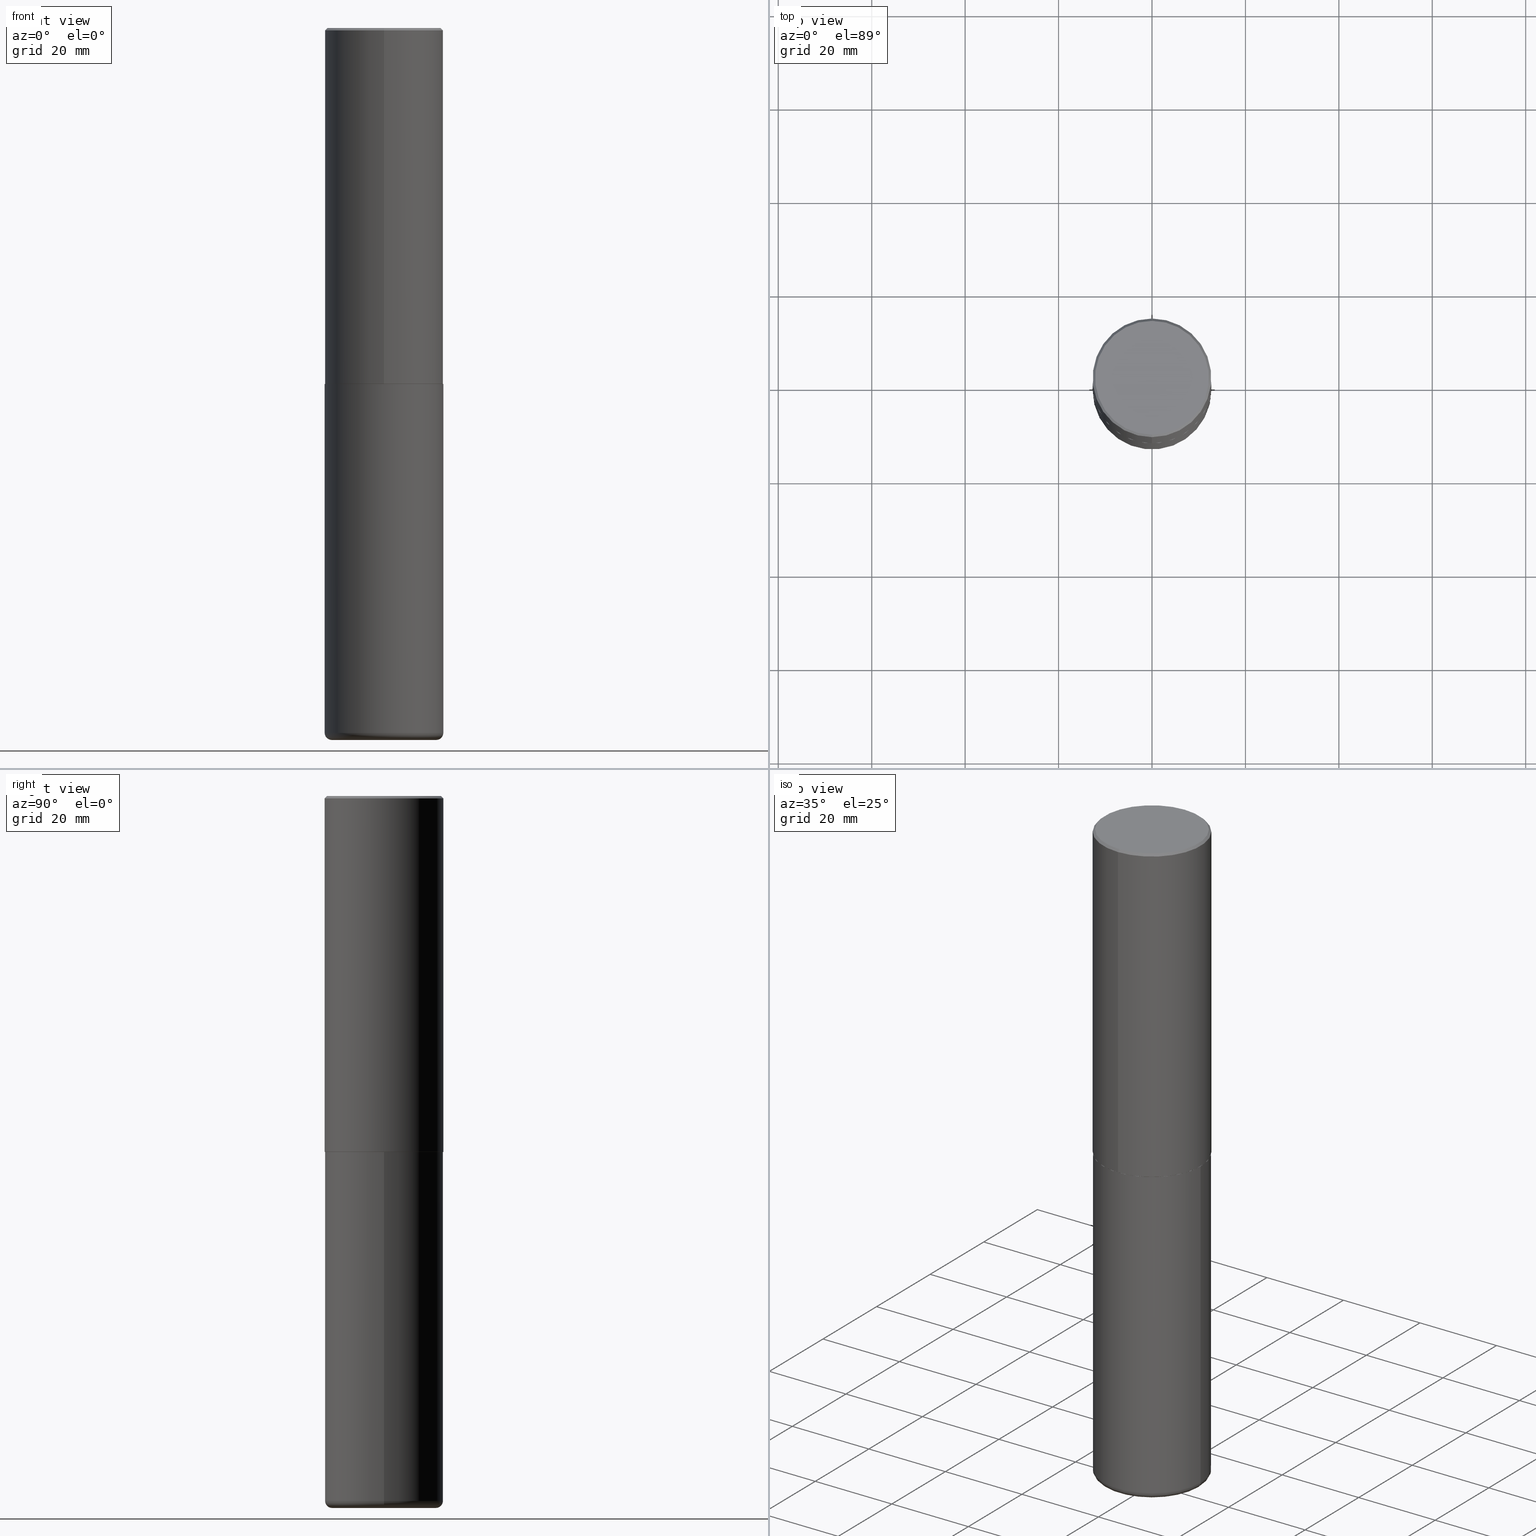
[diagram: canonical four-view strip — front | top / right | iso, engineering-drawing reading convention]
A machine part, canonical four-view strip (front | top / right | iso — engineering-drawing reading convention). The complete STEP part file that produces these views, byte-faithful:
ISO-10303-21;
HEADER;
FILE_DESCRIPTION (( 'STEP AP203' ),
    '1' );
FILE_NAME ('37719.STEP',
    '2024-03-02T09:13:31',
    ( '' ),
    ( '' ),
    'SwSTEP 2.0',
    'SolidWorks 2023',
    '' );
FILE_SCHEMA (( 'CONFIG_CONTROL_DESIGN' ));
ENDSEC;

DATA;
#1 = DATE_TIME_ROLE ( 'classification_date' ) ;
#2 = APPROVAL_STATUS ( 'not_yet_approved' ) ;
#3 = ORIENTED_EDGE ( 'NONE', *, *, #120, .F. ) ;
#4 = CARTESIAN_POINT ( 'NONE',  ( 7.334694101099137475E-29, -1.047689615258587837E-14, -3.000000000000000444 ) ) ;
#5 = EDGE_CURVE ( 'NONE', #378, #255, #9, .T. ) ;
#6 = APPLICATION_CONTEXT ( 'configuration controlled 3d designs of mechanical parts and assemblies' ) ;
#7 = EDGE_LOOP ( 'NONE', ( #361, #119, #196, #91 ) ) ;
#8 = LOCAL_TIME ( 4, 13, 31.00000000000000000, #287 ) ;
#9 = LINE ( 'NONE', #244, #359 ) ;
#10 = CARTESIAN_POINT ( 'NONE',  ( 3.421651712066270057E-15, 0.4799999999999999267, -1.573466742882299844E-15 ) ) ;
#11 = CC_DESIGN_PERSON_AND_ORGANIZATION_ASSIGNMENT ( #200, #349, ( #64 ) ) ;
#12 = CARTESIAN_POINT ( 'NONE',  ( -3.430248998885764992E-15, -0.5000000000000001110, -0.01999999999999835937 ) ) ;
#13 = CARTESIAN_POINT ( 'NONE',  ( 0.4400000000000000022, -2.402139161124082943E-14, -5.999999999999999112 ) ) ;
#14 = CARTESIAN_POINT ( 'NONE',  ( -0.4999999999999997224, -1.718668547392778504E-14, -5.940000000000000391 ) ) ;
#15 = CARTESIAN_POINT ( 'NONE',  ( -3.491481338843133750E-15, -0.5000000000000001110, 1.746149358764313390E-15 ) ) ;
#16 = CLOSED_SHELL ( 'NONE', ( #385, #317, #364, #399, #147, #328 ) ) ;
#17 = CARTESIAN_POINT ( 'NONE',  ( 3.491481338843133355E-15, 0.4999999999999999445, -0.02000000000000185310 ) ) ;
#18 = DIRECTION ( 'NONE',  ( -6.982962677686265922E-15, -1.000000000000000000, 3.492298717528625990E-15 ) ) ;
#19 =( LENGTH_UNIT ( ) NAMED_UNIT ( * ) SI_UNIT ( $, .METRE. ) );
#20 = EDGE_CURVE ( 'NONE', #350, #165, #310, .T. ) ;
#21 = DIRECTION ( 'NONE',  ( -2.445468806185136597E-29, 3.491481338843145583E-15, 1.000000000000000000 ) ) ;
#22 = CYLINDRICAL_SURFACE ( 'NONE', #118, 0.5000000000000000000 ) ;
#23 = AXIS2_PLACEMENT_3D ( 'NONE', #121, #382, #162 ) ;
#25 = EDGE_CURVE ( 'NONE', #282, #256, #335, .T. ) ;
#24 = DIRECTION ( 'NONE',  ( -6.982962677686265922E-15, -1.000000000000000000, 3.492298717528626385E-15 ) ) ;
#26 = EDGE_LOOP ( 'NONE', ( #106, #315, #75, #318 ) ) ;
#27 = DIRECTION ( 'NONE',  ( -2.444898033699712212E-29, 3.492298717528625990E-15, 1.000000000000000000 ) ) ;
#28 = EDGE_LOOP ( 'NONE', ( #192, #167, #236, #292 ) ) ;
#29 = APPLICATION_CONTEXT ( 'configuration controlled 3d designs of mechanical parts and assemblies' ) ;
#30 = PERSON_AND_ORGANIZATION ( #363, #49 ) ;
#31 = EDGE_LOOP ( 'NONE', ( #190, #88, #366, #380 ) ) ;
#32 = CARTESIAN_POINT ( 'NONE',  ( -0.5000000000000000000, -1.205420790582835944E-14, -3.000000000000000444 ) ) ;
#33 = DATE_AND_TIME ( #128, #8 ) ;
#34 = VECTOR ( 'NONE', #78, 39.37007874015748143 ) ;
#35 = ORIENTED_EDGE ( 'NONE', *, *, #393, .T. ) ;
#36 = VERTEX_POINT ( 'NONE', #304 ) ;
#37 = FACE_OUTER_BOUND ( 'NONE', #228, .T. ) ;
#38 = CARTESIAN_POINT ( 'NONE',  ( 0.4400000000000000022, -2.381190273091024584E-14, -5.940000000000000391 ) ) ;
#39 = DIRECTION ( 'NONE',  ( -6.982962677686265922E-15, -1.000000000000000000, 3.492298717528625990E-15 ) ) ;
#40 = EDGE_CURVE ( 'NONE', #150, #378, #63, .T. ) ;
#41 = CARTESIAN_POINT ( 'NONE',  ( 3.351822085289407153E-15, 0.4799999999999999267, -1.624885063648019971E-15 ) ) ;
#42 = CARTESIAN_POINT ( 'NONE',  ( 7.336406418555409790E-29, -1.047444401652943635E-14, -3.000000000000000444 ) ) ;
#43 = DIRECTION ( 'NONE',  ( 4.937700262164529898E-15, 0.7071067811865424657, -0.7071067811865525687 ) ) ;
#44 = DIRECTION ( 'NONE',  ( 5.024295867789263036E-15, 0.7071067811867189912, 0.7071067811863760433 ) ) ;
#45 = CARTESIAN_POINT ( 'NONE',  ( 1.467281283711081734E-28, -2.094888803305886955E-14, -5.999999999999999112 ) ) ;
#46 = CONICAL_SURFACE ( 'NONE', #254, 0.5000000000000000000, 0.7853981633974446153 ) ;
#47 = DIRECTION ( 'NONE',  ( 7.105427357601001859E-15, 1.000000000000000000, -3.491481338843145583E-15 ) ) ;
#48 = CIRCLE ( 'NONE', #52, 0.5000000000000001110 ) ;
#49 = ORGANIZATION ( 'UNSPECIFIED', 'UNSPECIFIED', '' ) ;
#50 = DIRECTION ( 'NONE',  ( 1.000000000000000000, -6.982962677686270655E-15, 0.000000000000000000 ) ) ;
#51 = EDGE_CURVE ( 'NONE', #213, #324, #369, .T. ) ;
#52 = AXIS2_PLACEMENT_3D ( 'NONE', #365, #301, #171 ) ;
#53 = ORIENTED_EDGE ( 'NONE', *, *, #67, .T. ) ;
#54 = DIRECTION ( 'NONE',  ( -2.444898033699711371E-29, 3.492298717528626385E-15, 1.000000000000000000 ) ) ;
#55 = ORIENTED_EDGE ( 'NONE', *, *, #51, .T. ) ;
#56 = PERSON_AND_ORGANIZATION_ROLE ( 'creator' ) ;
#57 = ORIENTED_EDGE ( 'NONE', *, *, #188, .F. ) ;
#58 = APPROVAL_STATUS ( 'not_yet_approved' ) ;
#59 = AXIS2_PLACEMENT_3D ( 'NONE', #77, #403, #50 ) ;
#60 = EDGE_CURVE ( 'NONE', #324, #226, #104, .T. ) ;
#61 = DIRECTION ( 'NONE',  ( -2.444898033699712212E-29, 3.492298717528625990E-15, 1.000000000000000000 ) ) ;
#62 = ORIENTED_EDGE ( 'NONE', *, *, #60, .F. ) ;
#63 = CIRCLE ( 'NONE', #126, 0.4799999999999999267 ) ;
#64 = PRODUCT_DEFINITION_FORMATION_WITH_SPECIFIED_SOURCE ( 'ANY', '', #410, .NOT_KNOWN. ) ;
#65 = FACE_OUTER_BOUND ( 'NONE', #26, .T. ) ;
#66 = FACE_OUTER_BOUND ( 'NONE', #298, .T. ) ;
#67 = EDGE_CURVE ( 'NONE', #226, #324, #48, .T. ) ;
#68 = SECURITY_CLASSIFICATION_LEVEL ( 'unclassified' ) ;
#69 = AXIS2_PLACEMENT_3D ( 'NONE', #233, #388, #356 ) ;
#70 = CC_DESIGN_APPROVAL ( #342, ( #94 ) ) ;
#71 = ORIENTED_EDGE ( 'NONE', *, *, #289, .F. ) ;
#72 = ORIENTED_EDGE ( 'NONE', *, *, #135, .F. ) ;
#73 = ADVANCED_FACE ( 'NONE', ( #330 ), #178, .T. ) ;
#74 = CARTESIAN_POINT ( 'NONE',  ( -3.491481338843061569E-15, -0.5000000000000107692, -2.998999999999998778 ) ) ;
#75 = ORIENTED_EDGE ( 'NONE', *, *, #90, .T. ) ;
#76 = CARTESIAN_POINT ( 'NONE',  ( -2.514251026725007597E-45, 3.591362713352002573E-31, 1.028366415314403880E-16 ) ) ;
#77 = CARTESIAN_POINT ( 'NONE',  ( 1.467281283711081734E-28, -2.094888803305886955E-14, -5.999999999999999112 ) ) ;
#78 = DIRECTION ( 'NONE',  ( -4.851104656540946131E-15, -0.7071067811865473507, -0.7071067811865476838 ) ) ;
#79 = DIRECTION ( 'NONE',  ( -1.000000000000000000, 6.982962677686265922E-15, -4.876176775795935793E-29 ) ) ;
#80 = DIRECTION ( 'NONE',  ( 2.444898033699712212E-29, -3.492298717528625990E-15, -1.000000000000000000 ) ) ;
#81 = CIRCLE ( 'NONE', #194, 0.5000000000000000000 ) ;
#82 = TOROIDAL_SURFACE ( 'NONE', #155, 0.4400000000000000022, 0.05999999999999942879 ) ;
#83 = CARTESIAN_POINT ( 'NONE',  ( 7.334694101099137475E-29, -1.047689615258587837E-14, -3.000000000000000444 ) ) ;
#84 = APPROVAL ( #58, 'UNSPECIFIED' ) ;
#85 = APPROVAL_ROLE ( '' ) ;
#86 =( NAMED_UNIT ( * ) PLANE_ANGLE_UNIT ( ) SI_UNIT ( $, .RADIAN. ) );
#87 = CIRCLE ( 'NONE', #134, 0.5000000000000000000 ) ;
#88 = ORIENTED_EDGE ( 'NONE', *, *, #142, .T. ) ;
#89 = EDGE_LOOP ( 'NONE', ( #175, #314 ) ) ;
#90 = EDGE_CURVE ( 'NONE', #256, #36, #217, .T. ) ;
#91 = ORIENTED_EDGE ( 'NONE', *, *, #90, .F. ) ;
#92 = PERSON_AND_ORGANIZATION ( #363, #49 ) ;
#93 = AXIS2_PLACEMENT_3D ( 'NONE', #103, #243, #370 ) ;
#94 = PRODUCT_DEFINITION ( 'UNKNOWN', '', #64, #189 ) ;
#95 = VERTEX_POINT ( 'NONE', #13 ) ;
#96 = DIRECTION ( 'NONE',  ( -6.982962677686265922E-15, -1.000000000000000000, 3.284787166730577015E-15 ) ) ;
#97 = AXIS2_PLACEMENT_3D ( 'NONE', #305, #102, #300 ) ;
#98 = CIRCLE ( 'NONE', #265, 0.4989999999999999991 ) ;
#99 = LOCAL_TIME ( 4, 13, 31.00000000000000000, #227 ) ;
#100 = ORIENTED_EDGE ( 'NONE', *, *, #295, .T. ) ;
#101 = DIRECTION ( 'NONE',  ( 1.000000000000000000, -6.982962677686269866E-15, 0.000000000000000000 ) ) ;
#102 = DIRECTION ( 'NONE',  ( 2.438088387897960049E-29, -3.491481338843145188E-15, -1.000000000000000000 ) ) ;
#103 = CARTESIAN_POINT ( 'NONE',  ( 0.000000000000000000, 0.000000000000000000, 0.000000000000000000 ) ) ;
#104 = CIRCLE ( 'NONE', #418, 0.5000000000000001110 ) ;
#105 = CC_DESIGN_PERSON_AND_ORGANIZATION_ASSIGNMENT ( #92, #56, ( #94 ) ) ;
#106 = ORIENTED_EDGE ( 'NONE', *, *, #160, .F. ) ;
#107 = CARTESIAN_POINT ( 'NONE',  ( 7.334694101099137475E-29, -1.047689615258587837E-14, -3.000000000000000444 ) ) ;
#108 = ADVANCED_BREP_SHAPE_REPRESENTATION ( '37719', ( #303, #296, #219 ), #237 ) ;
#109 = CARTESIAN_POINT ( 'NONE',  ( 3.552713678800539584E-15, 0.4999999999999898970, -2.999000000000001886 ) ) ;
#110 = EDGE_CURVE ( 'NONE', #226, #262, #270, .T. ) ;
#111 = VECTOR ( 'NONE', #139, 39.37007874015748143 ) ;
#112 = CARTESIAN_POINT ( 'NONE',  ( 0.000000000000000000, 0.000000000000000000, 0.000000000000000000 ) ) ;
#113 = PRODUCT_DEFINITION_SHAPE ( 'NONE', 'NONE',  #94 ) ;
#114 = APPROVAL_STATUS ( 'not_yet_approved' ) ;
#115 = PERSON_AND_ORGANIZATION ( #363, #49 ) ;
#116 = EDGE_LOOP ( 'NONE', ( #347, #35, #186, #62 ) ) ;
#117 = AXIS2_PLACEMENT_3D ( 'NONE', #38, #397, #101 ) ;
#118 = AXIS2_PLACEMENT_3D ( 'NONE', #312, #21, #225 ) ;
#119 = ORIENTED_EDGE ( 'NONE', *, *, #160, .T. ) ;
#120 = EDGE_CURVE ( 'NONE', #262, #205, #203, .T. ) ;
#121 = CARTESIAN_POINT ( 'NONE',  ( 7.334694101099137475E-29, -1.047689615258587837E-14, -3.000000000000000444 ) ) ;
#122 = EDGE_LOOP ( 'NONE', ( #415, #383, #345, #230 ) ) ;
#123 = DIRECTION ( 'NONE',  ( -2.444898033699712212E-29, 3.492298717528625990E-15, 1.000000000000000000 ) ) ;
#124 = CARTESIAN_POINT ( 'NONE',  ( 0.000000000000000000, 0.000000000000000000, 0.000000000000000000 ) ) ;
#125 = COORDINATED_UNIVERSAL_TIME_OFFSET ( 5, 0, .BEHIND. ) ;
#126 = AXIS2_PLACEMENT_3D ( 'NONE', #76, #275, #18 ) ;
#127 = DIRECTION ( 'NONE',  ( -2.444898033699712212E-29, 3.492298717528625990E-15, 1.000000000000000000 ) ) ;
#128 = CALENDAR_DATE ( 2024, 2, 3 ) ;
#129 = PERSON_AND_ORGANIZATION ( #363, #49 ) ;
#130 = ORIENTED_EDGE ( 'NONE', *, *, #20, .T. ) ;
#131 = FACE_OUTER_BOUND ( 'NONE', #7, .T. ) ;
#132 = ORIENTED_EDGE ( 'NONE', *, *, #221, .T. ) ;
#133 = CARTESIAN_POINT ( 'NONE',  ( 1.452608470873971255E-28, -2.073939915272828597E-14, -5.940000000000000391 ) ) ;
#134 = AXIS2_PLACEMENT_3D ( 'NONE', #374, #27, #376 ) ;
#135 = EDGE_CURVE ( 'NONE', #95, #226, #402, .T. ) ;
#136 = LOCAL_TIME ( 4, 13, 31.00000000000000000, #384 ) ;
#137 = DIRECTION ( 'NONE',  ( -2.445468806185136597E-29, 3.491481338843145583E-15, 1.000000000000000000 ) ) ;
#138 = DIRECTION ( 'NONE',  ( -2.445468806185136597E-29, 3.491481338843145583E-15, 1.000000000000000000 ) ) ;
#139 = DIRECTION ( 'NONE',  ( -2.445468806185136877E-29, 3.491481338843145188E-15, 1.000000000000000000 ) ) ;
#140 = DIRECTION ( 'NONE',  ( -2.444898033699712212E-29, 3.492298717528625990E-15, 1.000000000000000000 ) ) ;
#141 = CARTESIAN_POINT ( 'NONE',  ( 1.452608470873971255E-28, -2.073939915272828597E-14, -5.940000000000000391 ) ) ;
#142 = EDGE_CURVE ( 'NONE', #150, #36, #240, .T. ) ;
#143 = DIRECTION ( 'NONE',  ( 1.000000000000000000, -6.982962677686270655E-15, 0.000000000000000000 ) ) ;
#144 = CARTESIAN_POINT ( 'NONE',  ( 3.552713678800501718E-15, 0.5000000000000001110, -1.746149358764313390E-15 ) ) ;
#145 = CARTESIAN_POINT ( 'NONE',  ( -0.4400000000000000022, -1.761301111538384237E-14, -5.940000000000000391 ) ) ;
#146 = LENGTH_MEASURE_WITH_UNIT ( LENGTH_MEASURE( 0.02539999999999999897 ), #19 );
#147 = ADVANCED_FACE ( 'NONE', ( #401 ), #274, .T. ) ;
#148 = AXIS2_PLACEMENT_3D ( 'NONE', #268, #80, #371 ) ;
#149 = FACE_OUTER_BOUND ( 'NONE', #28, .T. ) ;
#150 = VERTEX_POINT ( 'NONE', #242 ) ;
#151 = CARTESIAN_POINT ( 'NONE',  ( 4.889796067399450837E-31, -6.984597435057287381E-17, -0.02000000000000010797 ) ) ;
#152 = ORIENTED_EDGE ( 'NONE', *, *, #25, .F. ) ;
#153 = PERSON_AND_ORGANIZATION_ROLE ( 'design_supplier' ) ;
#154 = VECTOR ( 'NONE', #326, 39.37007874015748143 ) ;
#155 = AXIS2_PLACEMENT_3D ( 'NONE', #133, #208, #331 ) ;
#156 = ORIENTED_EDGE ( 'NONE', *, *, #348, .T. ) ;
#157 = CARTESIAN_POINT ( 'NONE',  ( 7.334694101099137475E-29, -1.047689615258587837E-14, -3.000000000000000444 ) ) ;
#158 = APPROVAL_ROLE ( '' ) ;
#159 = DIRECTION ( 'NONE',  ( -6.982962677686265922E-15, -1.000000000000000000, 3.491643216902136408E-15 ) ) ;
#160 = EDGE_CURVE ( 'NONE', #165, #255, #306, .T. ) ;
#161 = DATE_TIME_ROLE ( 'creation_date' ) ;
#162 = DIRECTION ( 'NONE',  ( -6.982962677686265922E-15, -1.000000000000000000, 3.284787166730577015E-15 ) ) ;
#163 = ORIENTED_EDGE ( 'NONE', *, *, #40, .T. ) ;
#164 = DIRECTION ( 'NONE',  ( -6.982962677686265922E-15, -1.000000000000000000, 3.284787166730577015E-15 ) ) ;
#165 = VERTEX_POINT ( 'NONE', #109 ) ;
#166 = EDGE_CURVE ( 'NONE', #255, #36, #87, .T. ) ;
#167 = ORIENTED_EDGE ( 'NONE', *, *, #60, .T. ) ;
#168 = CARTESIAN_POINT ( 'NONE',  ( 3.549160965121773789E-15, 0.4989999999999895630, -3.000000000000001776 ) ) ;
#169 = CC_DESIGN_APPROVAL ( #197, ( #338 ) ) ;
#170 = AXIS2_PLACEMENT_3D ( 'NONE', #141, #368, #177 ) ;
#171 = DIRECTION ( 'NONE',  ( 1.000000000000000000, -6.982962677686269077E-15, 0.000000000000000000 ) ) ;
#172 = DIRECTION ( 'NONE',  ( -2.445468806185136597E-29, 3.491481338843145583E-15, 1.000000000000000000 ) ) ;
#173 = DIRECTION ( 'NONE',  ( 2.444898033699711371E-29, -3.492298717528626385E-15, -1.000000000000000000 ) ) ;
#174 = ADVANCED_FACE ( 'NONE', ( #220 ), #341, .F. ) ;
#175 = ORIENTED_EDGE ( 'NONE', *, *, #120, .T. ) ;
#176 = PLANE ( 'NONE',  #231 ) ;
#177 = DIRECTION ( 'NONE',  ( 1.000000000000000000, -6.982962677686262766E-15, 4.883557194083111780E-29 ) ) ;
#178 = CONICAL_SURFACE ( 'NONE', #148, 0.5000000000000000000, 0.7853981633974446153 ) ;
#179 = AXIS2_PLACEMENT_3D ( 'NONE', #266, #396, #39 ) ;
#180 = CARTESIAN_POINT ( 'NONE',  ( 3.545608251442972496E-15, 0.4989999999999895630, -3.000000000000001776 ) ) ;
#181 = DIRECTION ( 'NONE',  ( 2.444898033699712212E-29, -3.492298717528625990E-15, -1.000000000000000000 ) ) ;
#182 = ADVANCED_FACE ( 'NONE', ( #65 ), #198, .T. ) ;
#183 = PERSON_AND_ORGANIZATION_ROLE ( 'design_owner' ) ;
#184 = AXIS2_PLACEMENT_3D ( 'NONE', #145, #47, #398 ) ;
#185 = DATE_AND_TIME ( #223, #319 ) ;
#186 = ORIENTED_EDGE ( 'NONE', *, *, #135, .T. ) ;
#188 = EDGE_CURVE ( 'NONE', #256, #165, #379, .T. ) ;
#187 = DIRECTION ( 'NONE',  ( -2.444898033699711931E-29, 3.492298717528626385E-15, 1.000000000000000000 ) ) ;
#189 = DESIGN_CONTEXT ( 'detailed design', #29, 'design' ) ;
#190 = ORIENTED_EDGE ( 'NONE', *, *, #40, .F. ) ;
#191 = CALENDAR_DATE ( 2024, 2, 3 ) ;
#192 = ORIENTED_EDGE ( 'NONE', *, *, #295, .F. ) ;
#193 = DATE_AND_TIME ( #199, #136 ) ;
#194 = AXIS2_PLACEMENT_3D ( 'NONE', #42, #138, #405 ) ;
#195 = LOCAL_TIME ( 4, 13, 31.00000000000000000, #125 ) ;
#196 = ORIENTED_EDGE ( 'NONE', *, *, #224, .F. ) ;
#197 = APPROVAL ( #2, 'UNSPECIFIED' ) ;
#198 = CYLINDRICAL_SURFACE ( 'NONE', #202, 0.5000000000000001110 ) ;
#199 = CALENDAR_DATE ( 2024, 2, 3 ) ;
#200 = PERSON_AND_ORGANIZATION ( #363, #49 ) ;
#201 = PERSON_AND_ORGANIZATION_ROLE ( 'classification_officer' ) ;
#202 = AXIS2_PLACEMENT_3D ( 'NONE', #124, #127, #258 ) ;
#203 = CIRCLE ( 'NONE', #346, 0.5000000000000000000 ) ;
#204 = ADVANCED_FACE ( 'NONE', ( #390 ), #212, .F. ) ;
#205 = VERTEX_POINT ( 'NONE', #32 ) ;
#206 = CARTESIAN_POINT ( 'NONE',  ( 7.332249203065438921E-29, -1.047340385386834930E-14, -2.999000000000000554 ) ) ;
#207 = ORIENTED_EDGE ( 'NONE', *, *, #67, .F. ) ;
#208 = DIRECTION ( 'NONE',  ( -2.445468806185136597E-29, 3.491481338843145583E-15, 1.000000000000000000 ) ) ;
#209 = CARTESIAN_POINT ( 'NONE',  ( 7.336406418555409790E-29, -1.047444401652943635E-14, -3.000000000000000444 ) ) ;
#210 = FACE_OUTER_BOUND ( 'NONE', #89, .T. ) ;
#211 = CC_DESIGN_PERSON_AND_ORGANIZATION_ASSIGNMENT ( #358, #201, ( #338 ) ) ;
#212 = PLANE ( 'NONE',  #339 ) ;
#213 = VERTEX_POINT ( 'NONE', #351 ) ;
#214 = DIRECTION ( 'NONE',  ( 6.982962677686265922E-15, 1.000000000000000000, -3.492298717528626385E-15 ) ) ;
#215 = EDGE_LOOP ( 'NONE', ( #156, #163 ) ) ;
#216 = FACE_OUTER_BOUND ( 'NONE', #412, .T. ) ;
#217 = LINE ( 'NONE', #15, #154 ) ;
#218 = VECTOR ( 'NONE', #44, 39.37007874015748143 ) ;
#219 = AXIS2_PLACEMENT_3D ( 'NONE', #112, #281, #250 ) ;
#220 = FACE_OUTER_BOUND ( 'NONE', #246, .T. ) ;
#221 = EDGE_CURVE ( 'NONE', #350, #282, #259, .T. ) ;
#222 = APPLICATION_PROTOCOL_DEFINITION ( 'international standard', 'config_control_design', 1994, #29 ) ;
#223 = CALENDAR_DATE ( 2024, 2, 3 ) ;
#224 = EDGE_CURVE ( 'NONE', #36, #255, #308, .T. ) ;
#225 = DIRECTION ( 'NONE',  ( 1.000000000000000000, -6.982962677686266711E-15, 4.876176775795935793E-29 ) ) ;
#226 = VERTEX_POINT ( 'NONE', #293 ) ;
#227 = COORDINATED_UNIVERSAL_TIME_OFFSET ( 5, 0, .BEHIND. ) ;
#228 = EDGE_LOOP ( 'NONE', ( #395, #132, #320, #264 ) ) ;
#229 = ADVANCED_FACE ( 'NONE', ( #131 ), #260, .T. ) ;
#230 = ORIENTED_EDGE ( 'NONE', *, *, #166, .T. ) ;
#231 = AXIS2_PLACEMENT_3D ( 'NONE', #373, #245, #79 ) ;
#232 = CIRCLE ( 'NONE', #248, 0.4400000000000000022 ) ;
#233 = CARTESIAN_POINT ( 'NONE',  ( 7.332249203065438921E-29, -1.047340385386834930E-14, -2.999000000000000554 ) ) ;
#234 = DATE_AND_TIME ( #417, #99 ) ;
#235 = ADVANCED_FACE ( 'NONE', ( #66 ), #394, .T. ) ;
#236 = ORIENTED_EDGE ( 'NONE', *, *, #110, .T. ) ;
#237 =( GEOMETRIC_REPRESENTATION_CONTEXT ( 3 ) GLOBAL_UNCERTAINTY_ASSIGNED_CONTEXT ( ( #283 ) ) GLOBAL_UNIT_ASSIGNED_CONTEXT ( ( #407, #86, #411 ) ) REPRESENTATION_CONTEXT ( 'NONE', 'WORKASPACE' ) );
#238 = DIRECTION ( 'NONE',  ( 1.000000000000000000, -6.982962677686266711E-15, 0.000000000000000000 ) ) ;
#239 = FACE_OUTER_BOUND ( 'NONE', #413, .T. ) ;
#240 = LINE ( 'NONE', #12, #34 ) ;
#241 = EDGE_CURVE ( 'NONE', #282, #350, #98, .T. ) ;
#242 = CARTESIAN_POINT ( 'NONE',  ( -3.361644018908049661E-15, -0.4799999999999999267, 1.779140025945180744E-15 ) ) ;
#243 = DIRECTION ( 'NONE',  ( -2.445468806185136597E-29, 3.491481338843145583E-15, 1.000000000000000000 ) ) ;
#244 = CARTESIAN_POINT ( 'NONE',  ( 3.491481338843133355E-15, 0.4999999999999999445, -0.02000000000000185310 ) ) ;
#245 = DIRECTION ( 'NONE',  ( 2.438088387897960049E-29, -3.491481338843145188E-15, -1.000000000000000000 ) ) ;
#246 = EDGE_LOOP ( 'NONE', ( #288, #284 ) ) ;
#247 = DIRECTION ( 'NONE',  ( -2.445468806185136877E-29, 3.491481338843145188E-15, 1.000000000000000000 ) ) ;
#248 = AXIS2_PLACEMENT_3D ( 'NONE', #45, #172, #143 ) ;
#249 = CIRCLE ( 'NONE', #59, 0.4400000000000000022 ) ;
#250 = DIRECTION ( 'NONE',  ( 1.000000000000000000, 0.000000000000000000, 0.000000000000000000 ) ) ;
#251 = PRODUCT_RELATED_PRODUCT_CATEGORY ( 'detail', '', ( #410 ) ) ;
#252 = EDGE_LOOP ( 'NONE', ( #53, #100, #3, #332 ) ) ;
#253 = VECTOR ( 'NONE', #337, 39.37007874015748143 ) ;
#254 = AXIS2_PLACEMENT_3D ( 'NONE', #151, #181, #311 ) ;
#255 = VERTEX_POINT ( 'NONE', #17 ) ;
#256 = VERTEX_POINT ( 'NONE', #74 ) ;
#257 = DIMENSIONAL_EXPONENTS ( 1.000000000000000000, 0.000000000000000000, 0.000000000000000000, 0.000000000000000000, 0.000000000000000000, 0.000000000000000000, 0.000000000000000000 ) ;
#258 = DIRECTION ( 'NONE',  ( -6.982962677686265922E-15, -1.000000000000000000, 3.492298717528625990E-15 ) ) ;
#259 = CIRCLE ( 'NONE', #278, 0.4989999999999999991 ) ;
#260 = CYLINDRICAL_SURFACE ( 'NONE', #285, 0.5000000000000001110 ) ;
#261 = SHAPE_DEFINITION_REPRESENTATION ( #113, #108 ) ;
#262 = VERTEX_POINT ( 'NONE', #333 ) ;
#263 = DIRECTION ( 'NONE',  ( -2.444898033699712212E-29, 3.492298717528625990E-15, 1.000000000000000000 ) ) ;
#264 = ORIENTED_EDGE ( 'NONE', *, *, #334, .F. ) ;
#265 = AXIS2_PLACEMENT_3D ( 'NONE', #4, #392, #96 ) ;
#266 = CARTESIAN_POINT ( 'NONE',  ( -2.514251026725007597E-45, 3.591362713352002573E-31, 1.028366415314403880E-16 ) ) ;
#267 = CC_DESIGN_DATE_AND_TIME_ASSIGNMENT ( #322, #1, ( #338 ) ) ;
#268 = CARTESIAN_POINT ( 'NONE',  ( 4.889796067399450837E-31, -6.984597435057287381E-17, -0.02000000000000010797 ) ) ;
#269 = CARTESIAN_POINT ( 'NONE',  ( -0.5000000000000000000, 3.552713678800500929E-15, -2.459467545127452891E-29 ) ) ;
#270 = LINE ( 'NONE', #277, #111 ) ;
#271 = FACE_OUTER_BOUND ( 'NONE', #252, .T. ) ;
#272 = CARTESIAN_POINT ( 'NONE',  ( -3.484498376165373188E-15, -0.4990000000000104352, -2.999999999999998668 ) ) ;
#273 = DIRECTION ( 'NONE',  ( -2.444898033699712212E-29, 3.492298717528625990E-15, 1.000000000000000000 ) ) ;
#274 = TOROIDAL_SURFACE ( 'NONE', #170, 0.4400000000000000022, 0.05999999999999942879 ) ;
#275 = DIRECTION ( 'NONE',  ( -2.444898033699712212E-29, 3.492298717528625990E-15, 1.000000000000000000 ) ) ;
#276 = EDGE_CURVE ( 'NONE', #205, #262, #81, .T. ) ;
#277 = CARTESIAN_POINT ( 'NONE',  ( 0.5000000000000000000, -3.491481338843133355E-15, 2.438088387897967896E-29 ) ) ;
#278 = AXIS2_PLACEMENT_3D ( 'NONE', #157, #123, #164 ) ;
#279 = ADVANCED_FACE ( 'NONE', ( #37 ), #354, .T. ) ;
#280 = APPLICATION_PROTOCOL_DEFINITION ( 'international standard', 'config_control_design', 1994, #6 ) ;
#281 = DIRECTION ( 'NONE',  ( 0.000000000000000000, 0.000000000000000000, 1.000000000000000000 ) ) ;
#282 = VERTEX_POINT ( 'NONE', #367 ) ;
#283 = UNCERTAINTY_MEASURE_WITH_UNIT (LENGTH_MEASURE( 1.000000000000000082E-05 ), #407, 'distance_accuracy_value', 'NONE');
#284 = ORIENTED_EDGE ( 'NONE', *, *, #221, .F. ) ;
#285 = AXIS2_PLACEMENT_3D ( 'NONE', #389, #263, #357 ) ;
#286 = AXIS2_PLACEMENT_3D ( 'NONE', #206, #140, #302 ) ;
#287 = COORDINATED_UNIVERSAL_TIME_OFFSET ( 5, 0, .BEHIND. ) ;
#288 = ORIENTED_EDGE ( 'NONE', *, *, #241, .F. ) ;
#289 = EDGE_CURVE ( 'NONE', #95, #213, #232, .T. ) ;
#290 = APPROVAL_DATE_TIME ( #33, #197 ) ;
#291 = APPROVAL_ROLE ( '' ) ;
#292 = ORIENTED_EDGE ( 'NONE', *, *, #276, .F. ) ;
#293 = CARTESIAN_POINT ( 'NONE',  ( 0.4999999999999997224, -2.423088049157142248E-14, -5.940000000000000391 ) ) ;
#294 = ORIENTED_EDGE ( 'NONE', *, *, #289, .T. ) ;
#295 = EDGE_CURVE ( 'NONE', #324, #205, #327, .T. ) ;
#296 = MANIFOLD_SOLID_BREP ( 'Body-Move/Copy2[2]', #313 ) ;
#297 = CIRCLE ( 'NONE', #286, 0.5000000000000002220 ) ;
#298 = EDGE_LOOP ( 'NONE', ( #352, #130, #57, #152 ) ) ;
#299 = VECTOR ( 'NONE', #187, 39.37007874015748143 ) ;
#300 = DIRECTION ( 'NONE',  ( -1.000000000000000000, 6.982962677686265922E-15, -4.876176775795935793E-29 ) ) ;
#301 = DIRECTION ( 'NONE',  ( -2.445468806185136597E-29, 3.491481338843145583E-15, 1.000000000000000000 ) ) ;
#302 = DIRECTION ( 'NONE',  ( -6.982962677686266711E-15, -1.000000000000000000, 3.278217592397114284E-15 ) ) ;
#303 = MANIFOLD_SOLID_BREP ( 'Body-Move/Copy2[1]', #16 ) ;
#304 = CARTESIAN_POINT ( 'NONE',  ( -3.430248998885764992E-15, -0.5000000000000001110, -0.01999999999999835937 ) ) ;
#305 = CARTESIAN_POINT ( 'NONE',  ( 7.336406418555409790E-29, -1.047444401652943635E-14, -3.000000000000000444 ) ) ;
#306 = LINE ( 'NONE', #144, #299 ) ;
#307 = CC_DESIGN_DATE_AND_TIME_ASSIGNMENT ( #234, #161, ( #94 ) ) ;
#308 = CIRCLE ( 'NONE', #414, 0.5000000000000000000 ) ;
#309 = APPROVAL_PERSON_ORGANIZATION ( #129, #84, #291 ) ;
#310 = LINE ( 'NONE', #180, #218 ) ;
#311 = DIRECTION ( 'NONE',  ( 6.982962677686265922E-15, 1.000000000000000000, -3.491643216902136408E-15 ) ) ;
#312 = CARTESIAN_POINT ( 'NONE',  ( 0.000000000000000000, 0.000000000000000000, 0.000000000000000000 ) ) ;
#313 = CLOSED_SHELL ( 'NONE', ( #235, #229, #73, #408, #182, #279, #174, #204 ) ) ;
#314 = ORIENTED_EDGE ( 'NONE', *, *, #276, .T. ) ;
#315 = ORIENTED_EDGE ( 'NONE', *, *, #334, .T. ) ;
#316 = PERSON_AND_ORGANIZATION ( #363, #49 ) ;
#317 = ADVANCED_FACE ( 'NONE', ( #216 ), #82, .T. ) ;
#318 = ORIENTED_EDGE ( 'NONE', *, *, #166, .F. ) ;
#319 = LOCAL_TIME ( 4, 13, 31.00000000000000000, #377 ) ;
#320 = ORIENTED_EDGE ( 'NONE', *, *, #25, .T. ) ;
#321 = APPROVAL_DATE_TIME ( #193, #84 ) ;
#322 = DATE_AND_TIME ( #191, #195 ) ;
#323 = AXIS2_PLACEMENT_3D ( 'NONE', #83, #54, #24 ) ;
#324 = VERTEX_POINT ( 'NONE', #14 ) ;
#325 = DIRECTION ( 'NONE',  ( -6.982962677686265922E-15, -1.000000000000000000, 3.284787166730577015E-15 ) ) ;
#326 = DIRECTION ( 'NONE',  ( -2.444898033699711931E-29, 3.492298717528626385E-15, 1.000000000000000000 ) ) ;
#327 = LINE ( 'NONE', #269, #387 ) ;
#328 = ADVANCED_FACE ( 'NONE', ( #239 ), #176, .T. ) ;
#329 = APPROVAL_PERSON_ORGANIZATION ( #344, #342, #85 ) ;
#330 = FACE_OUTER_BOUND ( 'NONE', #31, .T. ) ;
#331 = DIRECTION ( 'NONE',  ( 1.000000000000000000, -6.982962677686262766E-15, 4.883557194083111780E-29 ) ) ;
#332 = ORIENTED_EDGE ( 'NONE', *, *, #110, .F. ) ;
#333 = CARTESIAN_POINT ( 'NONE',  ( 0.5000000000000000000, -1.396592535537257129E-14, -3.000000000000000444 ) ) ;
#334 = EDGE_CURVE ( 'NONE', #165, #256, #297, .T. ) ;
#335 = LINE ( 'NONE', #272, #253 ) ;
#336 = PLANE ( 'NONE',  #97 ) ;
#337 = DIRECTION ( 'NONE',  ( -4.937700262165728178E-15, -0.7071067811867141062, 0.7071067811863809283 ) ) ;
#338 = SECURITY_CLASSIFICATION ( '', '', #68 ) ;
#339 = AXIS2_PLACEMENT_3D ( 'NONE', #41, #173, #214 ) ;
#340 = CC_DESIGN_SECURITY_CLASSIFICATION ( #338, ( #64 ) ) ;
#341 = PLANE ( 'NONE',  #323 ) ;
#342 = APPROVAL ( #114, 'UNSPECIFIED' ) ;
#343 = FACE_OUTER_BOUND ( 'NONE', #122, .T. ) ;
#344 = PERSON_AND_ORGANIZATION ( #363, #49 ) ;
#345 = ORIENTED_EDGE ( 'NONE', *, *, #5, .T. ) ;
#346 = AXIS2_PLACEMENT_3D ( 'NONE', #209, #406, #238 ) ;
#347 = ORIENTED_EDGE ( 'NONE', *, *, #51, .F. ) ;
#348 = EDGE_CURVE ( 'NONE', #378, #150, #353, .T. ) ;
#349 = PERSON_AND_ORGANIZATION_ROLE ( 'creator' ) ;
#350 = VERTEX_POINT ( 'NONE', #168 ) ;
#351 = CARTESIAN_POINT ( 'NONE',  ( -0.4400000000000000022, -1.750459273482111023E-14, -5.999999999999999112 ) ) ;
#352 = ORIENTED_EDGE ( 'NONE', *, *, #241, .T. ) ;
#353 = CIRCLE ( 'NONE', #179, 0.4799999999999999267 ) ;
#354 = CONICAL_SURFACE ( 'NONE', #409, 0.4989999999999999991, 0.7853981633976873100 ) ;
#355 = CC_DESIGN_PERSON_AND_ORGANIZATION_ASSIGNMENT ( #30, #153, ( #64 ) ) ;
#356 = DIRECTION ( 'NONE',  ( -6.982962677686266711E-15, -1.000000000000000000, 3.278217592397114284E-15 ) ) ;
#357 = DIRECTION ( 'NONE',  ( -6.982962677686265922E-15, -1.000000000000000000, 3.492298717528625990E-15 ) ) ;
#358 = PERSON_AND_ORGANIZATION ( #363, #49 ) ;
#359 = VECTOR ( 'NONE', #43, 39.37007874015748143 ) ;
#360 = CC_DESIGN_APPROVAL ( #84, ( #64 ) ) ;
#361 = ORIENTED_EDGE ( 'NONE', *, *, #188, .T. ) ;
#362 = CARTESIAN_POINT ( 'NONE',  ( 4.889796067399450837E-31, -6.984597435057287381E-17, -0.02000000000000010797 ) ) ;
#363 = PERSON ( 'UNSPECIFIED', 'UNSPECIFIED', 'UNSPECIFIED', ('UNSPECIFIED'), ('UNSPECIFIED'), ('UNSPECIFIED') ) ;
#364 = ADVANCED_FACE ( 'NONE', ( #210 ), #336, .F. ) ;
#365 = CARTESIAN_POINT ( 'NONE',  ( 1.452608470873971255E-28, -2.073939915272828597E-14, -5.940000000000000391 ) ) ;
#366 = ORIENTED_EDGE ( 'NONE', *, *, #224, .T. ) ;
#367 = CARTESIAN_POINT ( 'NONE',  ( -3.484498376165373188E-15, -0.4990000000000104352, -2.999999999999998668 ) ) ;
#368 = DIRECTION ( 'NONE',  ( -2.445468806185136597E-29, 3.491481338843145583E-15, 1.000000000000000000 ) ) ;
#369 = CIRCLE ( 'NONE', #184, 0.05999999999999942879 ) ;
#370 = DIRECTION ( 'NONE',  ( 1.000000000000000000, -6.982962677686266711E-15, 4.876176775795935793E-29 ) ) ;
#371 = DIRECTION ( 'NONE',  ( 6.982962677686265922E-15, 1.000000000000000000, -3.491643216902136408E-15 ) ) ;
#372 = DIRECTION ( 'NONE',  ( 1.000000000000000000, -6.982962677686269077E-15, 0.000000000000000000 ) ) ;
#373 = CARTESIAN_POINT ( 'NONE',  ( 2.507811788122154797E-28, -6.047898976708337168E-15, -5.999999999999999112 ) ) ;
#374 = CARTESIAN_POINT ( 'NONE',  ( 4.889796067399450837E-31, -6.984597435057287381E-17, -0.02000000000000010797 ) ) ;
#375 = MECHANICAL_CONTEXT ( 'NONE', #6, 'mechanical' ) ;
#376 = DIRECTION ( 'NONE',  ( -6.982962677686265922E-15, -1.000000000000000000, 3.491643216902136408E-15 ) ) ;
#377 = COORDINATED_UNIVERSAL_TIME_OFFSET ( 5, 0, .BEHIND. ) ;
#378 = VERTEX_POINT ( 'NONE', #10 ) ;
#379 = CIRCLE ( 'NONE', #69, 0.5000000000000002220 ) ;
#380 = ORIENTED_EDGE ( 'NONE', *, *, #5, .F. ) ;
#381 = APPROVAL_DATE_TIME ( #185, #342 ) ;
#382 = DIRECTION ( 'NONE',  ( -2.444898033699712212E-29, 3.492298717528625990E-15, 1.000000000000000000 ) ) ;
#383 = ORIENTED_EDGE ( 'NONE', *, *, #348, .F. ) ;
#384 = COORDINATED_UNIVERSAL_TIME_OFFSET ( 5, 0, .BEHIND. ) ;
#385 = ADVANCED_FACE ( 'NONE', ( #271 ), #400, .T. ) ;
#386 = APPROVAL_PERSON_ORGANIZATION ( #316, #197, #158 ) ;
#387 = VECTOR ( 'NONE', #247, 39.37007874015748143 ) ;
#388 = DIRECTION ( 'NONE',  ( -2.444898033699712212E-29, 3.492298717528625990E-15, 1.000000000000000000 ) ) ;
#389 = CARTESIAN_POINT ( 'NONE',  ( 0.000000000000000000, 0.000000000000000000, 0.000000000000000000 ) ) ;
#390 = FACE_OUTER_BOUND ( 'NONE', #215, .T. ) ;
#391 = ORIENTED_EDGE ( 'NONE', *, *, #393, .F. ) ;
#392 = DIRECTION ( 'NONE',  ( -2.444898033699712212E-29, 3.492298717528625990E-15, 1.000000000000000000 ) ) ;
#393 = EDGE_CURVE ( 'NONE', #213, #95, #249, .T. ) ;
#394 = CONICAL_SURFACE ( 'NONE', #23, 0.4989999999999999991, 0.7853981633976873100 ) ;
#395 = ORIENTED_EDGE ( 'NONE', *, *, #20, .F. ) ;
#396 = DIRECTION ( 'NONE',  ( -2.444898033699712212E-29, 3.492298717528625990E-15, 1.000000000000000000 ) ) ;
#397 = DIRECTION ( 'NONE',  ( -6.982962677686266711E-15, -1.000000000000000000, 3.491481338843145583E-15 ) ) ;
#398 = DIRECTION ( 'NONE',  ( -1.000000000000000000, 7.105427357600993970E-15, 0.000000000000000000 ) ) ;
#399 = ADVANCED_FACE ( 'NONE', ( #149 ), #22, .T. ) ;
#400 = CYLINDRICAL_SURFACE ( 'NONE', #93, 0.5000000000000000000 ) ;
#401 = FACE_OUTER_BOUND ( 'NONE', #116, .T. ) ;
#402 = CIRCLE ( 'NONE', #117, 0.05999999999999942879 ) ;
#403 = DIRECTION ( 'NONE',  ( -2.445468806185136597E-29, 3.491481338843145583E-15, 1.000000000000000000 ) ) ;
#404 = CARTESIAN_POINT ( 'NONE',  ( 1.452608470873971255E-28, -2.073939915272828597E-14, -5.940000000000000391 ) ) ;
#405 = DIRECTION ( 'NONE',  ( 1.000000000000000000, -6.982962677686266711E-15, 0.000000000000000000 ) ) ;
#406 = DIRECTION ( 'NONE',  ( -2.445468806185136597E-29, 3.491481338843145583E-15, 1.000000000000000000 ) ) ;
#407 =( CONVERSION_BASED_UNIT ( 'INCH', #146 ) LENGTH_UNIT ( ) NAMED_UNIT ( #257 ) );
#408 = ADVANCED_FACE ( 'NONE', ( #343 ), #46, .T. ) ;
#409 = AXIS2_PLACEMENT_3D ( 'NONE', #107, #273, #325 ) ;
#410 = PRODUCT ( '37719', '37719', '', ( #375 ) ) ;
#411 =( NAMED_UNIT ( * ) SI_UNIT ( $, .STERADIAN. ) SOLID_ANGLE_UNIT ( ) );
#412 = EDGE_LOOP ( 'NONE', ( #294, #55, #207, #72 ) ) ;
#413 = EDGE_LOOP ( 'NONE', ( #71, #391 ) ) ;
#414 = AXIS2_PLACEMENT_3D ( 'NONE', #362, #61, #159 ) ;
#415 = ORIENTED_EDGE ( 'NONE', *, *, #142, .F. ) ;
#416 = CC_DESIGN_PERSON_AND_ORGANIZATION_ASSIGNMENT ( #115, #183, ( #410 ) ) ;
#417 = CALENDAR_DATE ( 2024, 2, 3 ) ;
#418 = AXIS2_PLACEMENT_3D ( 'NONE', #404, #137, #372 ) ;
ENDSEC;
END-ISO-10303-21;
